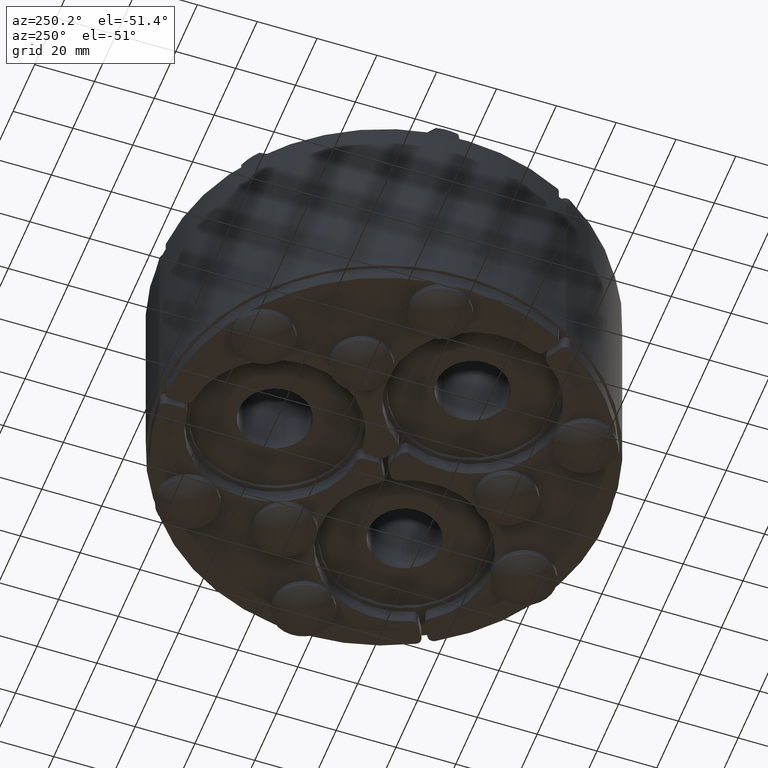
[diagram: clean part render]
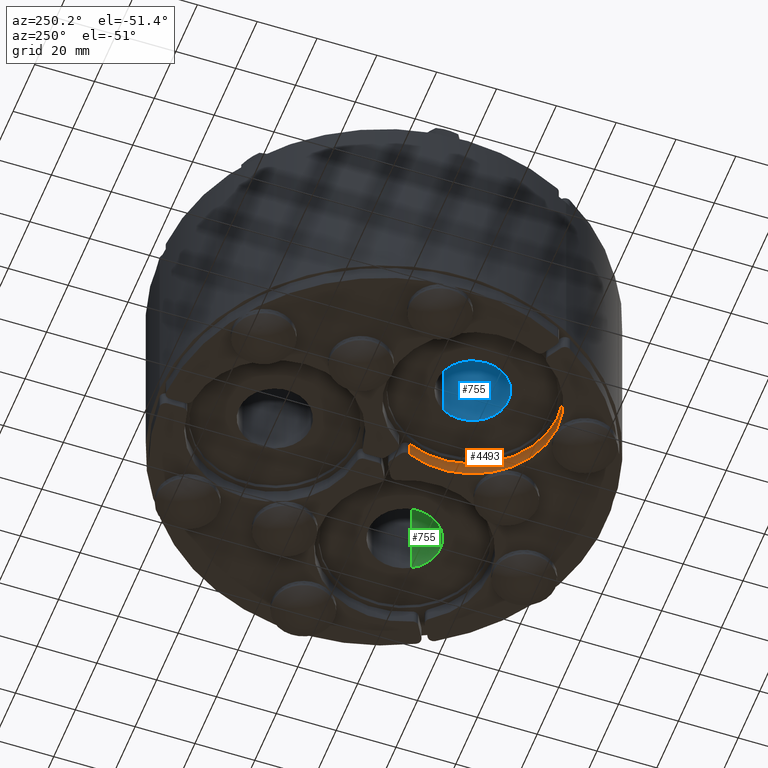
[diagram: same view with three faces highlighted in distinct colors, each labeled with its STEP entity id]
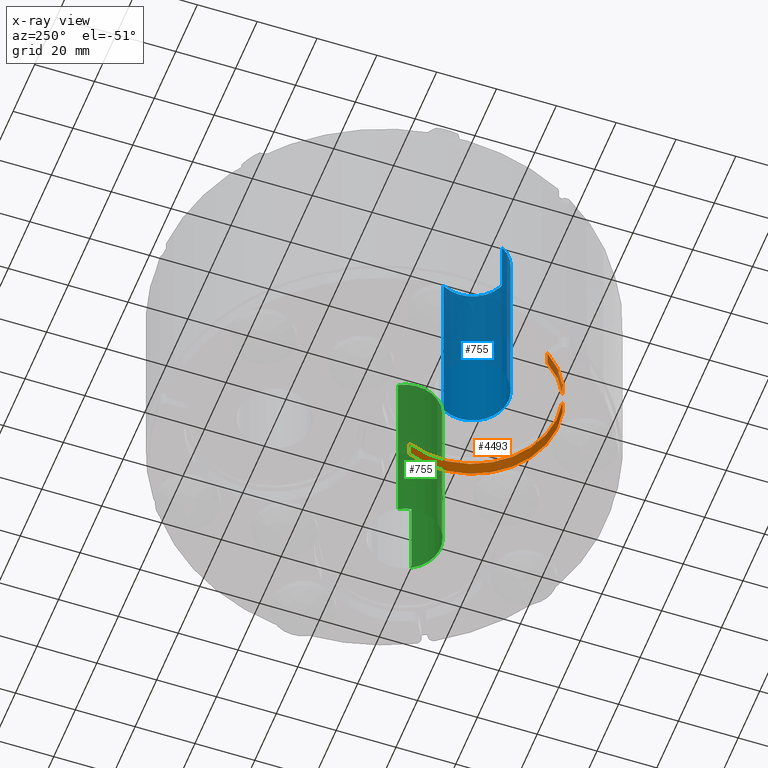
[diagram: x-ray of the same camera — body ghosted, the three highlighted faces saturated]
A machine part, auxiliary view with three faces highlighted in distinct colors.
The next image is the same camera in x-ray (body ghosted, the three faces saturated) — at least one of them is partly hidden behind the body in this view.
Their STEP definitions:

[orange] entity #4493 — the highlighted cylindrical surface (partial cylindrical patch) has radius 28.5 mm, axis along (0, 0, 1).
#4185=CARTESIAN_POINT('',(-54.770326112345131,-34.85860993543244,0.0));
#4186=VERTEX_POINT('',#4185);
#4194=CARTESIAN_POINT('',(-5.646249675394235,-6.49681118086713,0.0));
#4195=VERTEX_POINT('',#4194);
#4196=CARTESIAN_POINT('',(-31.609927238131974,-18.249999999999964,0.0));
#4197=DIRECTION('',(0.0,0.0,-1.0));
#4198=DIRECTION('',(0.8479482772105,0.530078974470545,0.0));
#4199=AXIS2_PLACEMENT_3D('',#4196,#4197,#4198);
#4200=CIRCLE('',#4199,28.5);
#4201=EDGE_CURVE('',#4195,#4186,#4200,.T.);
#4449=CARTESIAN_POINT('',(-5.646249675394235,-6.49681118086713,5.0));
#4450=VERTEX_POINT('',#4449);
#4460=CARTESIAN_POINT('',(-5.646249675394235,-6.49681118086713,0.0));
#4461=DIRECTION('',(0.0,0.0,1.0));
#4462=VECTOR('',#4461,5.0);
#4463=LINE('',#4460,#4462);
#4464=EDGE_CURVE('',#4195,#4450,#4463,.T.);
#4469=CARTESIAN_POINT('',(-31.609927238131974,-18.249999999999964,0.0));
#4470=DIRECTION('',(0.0,0.0,1.0));
#4471=DIRECTION('',(0.8479482772105,0.530078974470545,0.0));
#4472=AXIS2_PLACEMENT_3D('',#4469,#4470,#4471);
#4473=CYLINDRICAL_SURFACE('',#4472,28.5);
#4474=ORIENTED_EDGE('',*,*,#4464,.F.);
#4475=ORIENTED_EDGE('',*,*,#4201,.T.);
#4476=CARTESIAN_POINT('',(-54.770326112345131,-34.85860993543244,5.0));
#4477=VERTEX_POINT('',#4476);
#4478=CARTESIAN_POINT('',(-54.770326112345131,-34.85860993543244,5.0));
#4479=DIRECTION('',(0.0,0.0,-1.0));
#4480=VECTOR('',#4479,5.0);
#4481=LINE('',#4478,#4480);
#4482=EDGE_CURVE('',#4477,#4186,#4481,.T.);
#4483=ORIENTED_EDGE('',*,*,#4482,.F.);
#4484=CARTESIAN_POINT('',(-31.609927238131974,-18.249999999999964,5.0));
#4485=DIRECTION('',(0.0,0.0,-1.0));
#4486=DIRECTION('',(0.8479482772105,0.530078974470545,0.0));
#4487=AXIS2_PLACEMENT_3D('',#4484,#4485,#4486);
#4488=CIRCLE('',#4487,28.5);
#4489=EDGE_CURVE('',#4450,#4477,#4488,.T.);
#4490=ORIENTED_EDGE('',*,*,#4489,.F.);
#4491=EDGE_LOOP('',(#4474,#4475,#4483,#4490));
#4492=FACE_OUTER_BOUND('',#4491,.T.);
#4493=ADVANCED_FACE('',(#4492),#4473,.F.);

[blue] entity #755 — the highlighted cylindrical surface (partial cylindrical patch) has radius 12 mm, axis along (0, 0, 1).
#633=CARTESIAN_POINT('',(-31.250000000000004,-1.194959E-015,12.000000000000002));
#634=VERTEX_POINT('',#633);
#652=CARTESIAN_POINT('',(-31.25,2.664535E-015,-12.000000000000002));
#653=VERTEX_POINT('',#652);
#660=CARTESIAN_POINT('',(-31.250000000000004,0.0,0.0));
#661=DIRECTION('',(1.0,0.0,0.0));
#662=DIRECTION('',(0.0,0.0,-1.0));
#663=AXIS2_PLACEMENT_3D('',#660,#661,#662);
#664=CIRCLE('',#663,12.000000000000002);
#665=EDGE_CURVE('',#653,#634,#664,.T.);
#707=CARTESIAN_POINT('',(31.25,-1.194959E-015,12.000000000000002));
#708=VERTEX_POINT('',#707);
#715=CARTESIAN_POINT('',(31.25,2.664535E-015,-12.000000000000002));
#716=VERTEX_POINT('',#715);
#717=CARTESIAN_POINT('',(31.25,0.0,0.0));
#718=DIRECTION('',(1.0,0.0,0.0));
#719=DIRECTION('',(0.0,0.0,-1.0));
#720=AXIS2_PLACEMENT_3D('',#717,#718,#719);
#721=CIRCLE('',#720,12.000000000000002);
#722=EDGE_CURVE('',#716,#708,#721,.T.);
#734=CARTESIAN_POINT('',(0.0,0.0,0.0));
#735=DIRECTION('',(1.0,0.0,0.0));
#736=DIRECTION('',(0.0,0.0,-1.0));
#737=AXIS2_PLACEMENT_3D('',#734,#735,#736);
#738=CYLINDRICAL_SURFACE('',#737,12.000000000000002);
#739=CARTESIAN_POINT('',(31.25,-1.194959E-015,12.000000000000002));
#740=DIRECTION('',(-1.0,0.0,0.0));
#741=VECTOR('',#740,62.5);
#742=LINE('',#739,#741);
#743=EDGE_CURVE('',#708,#634,#742,.T.);
#744=ORIENTED_EDGE('',*,*,#743,.T.);
#745=ORIENTED_EDGE('',*,*,#665,.F.);
#746=CARTESIAN_POINT('',(31.25,2.664535E-015,-12.000000000000002));
#747=DIRECTION('',(-1.0,0.0,0.0));
#748=VECTOR('',#747,62.5);
#749=LINE('',#746,#748);
#750=EDGE_CURVE('',#716,#653,#749,.T.);
#751=ORIENTED_EDGE('',*,*,#750,.F.);
#752=ORIENTED_EDGE('',*,*,#722,.T.);
#753=EDGE_LOOP('',(#744,#745,#751,#752));
#754=FACE_OUTER_BOUND('',#753,.T.);
#755=ADVANCED_FACE('',(#754),#738,.F.);

[green] entity #755 — the highlighted cylindrical surface (partial cylindrical patch) has radius 12 mm, axis along (0, 0, 1).
#633=CARTESIAN_POINT('',(-31.250000000000004,-1.194959E-015,12.000000000000002));
#634=VERTEX_POINT('',#633);
#652=CARTESIAN_POINT('',(-31.25,2.664535E-015,-12.000000000000002));
#653=VERTEX_POINT('',#652);
#660=CARTESIAN_POINT('',(-31.250000000000004,0.0,0.0));
#661=DIRECTION('',(1.0,0.0,0.0));
#662=DIRECTION('',(0.0,0.0,-1.0));
#663=AXIS2_PLACEMENT_3D('',#660,#661,#662);
#664=CIRCLE('',#663,12.000000000000002);
#665=EDGE_CURVE('',#653,#634,#664,.T.);
#707=CARTESIAN_POINT('',(31.25,-1.194959E-015,12.000000000000002));
#708=VERTEX_POINT('',#707);
#715=CARTESIAN_POINT('',(31.25,2.664535E-015,-12.000000000000002));
#716=VERTEX_POINT('',#715);
#717=CARTESIAN_POINT('',(31.25,0.0,0.0));
#718=DIRECTION('',(1.0,0.0,0.0));
#719=DIRECTION('',(0.0,0.0,-1.0));
#720=AXIS2_PLACEMENT_3D('',#717,#718,#719);
#721=CIRCLE('',#720,12.000000000000002);
#722=EDGE_CURVE('',#716,#708,#721,.T.);
#734=CARTESIAN_POINT('',(0.0,0.0,0.0));
#735=DIRECTION('',(1.0,0.0,0.0));
#736=DIRECTION('',(0.0,0.0,-1.0));
#737=AXIS2_PLACEMENT_3D('',#734,#735,#736);
#738=CYLINDRICAL_SURFACE('',#737,12.000000000000002);
#739=CARTESIAN_POINT('',(31.25,-1.194959E-015,12.000000000000002));
#740=DIRECTION('',(-1.0,0.0,0.0));
#741=VECTOR('',#740,62.5);
#742=LINE('',#739,#741);
#743=EDGE_CURVE('',#708,#634,#742,.T.);
#744=ORIENTED_EDGE('',*,*,#743,.T.);
#745=ORIENTED_EDGE('',*,*,#665,.F.);
#746=CARTESIAN_POINT('',(31.25,2.664535E-015,-12.000000000000002));
#747=DIRECTION('',(-1.0,0.0,0.0));
#748=VECTOR('',#747,62.5);
#749=LINE('',#746,#748);
#750=EDGE_CURVE('',#716,#653,#749,.T.);
#751=ORIENTED_EDGE('',*,*,#750,.F.);
#752=ORIENTED_EDGE('',*,*,#722,.T.);
#753=EDGE_LOOP('',(#744,#745,#751,#752));
#754=FACE_OUTER_BOUND('',#753,.T.);
#755=ADVANCED_FACE('',(#754),#738,.F.);